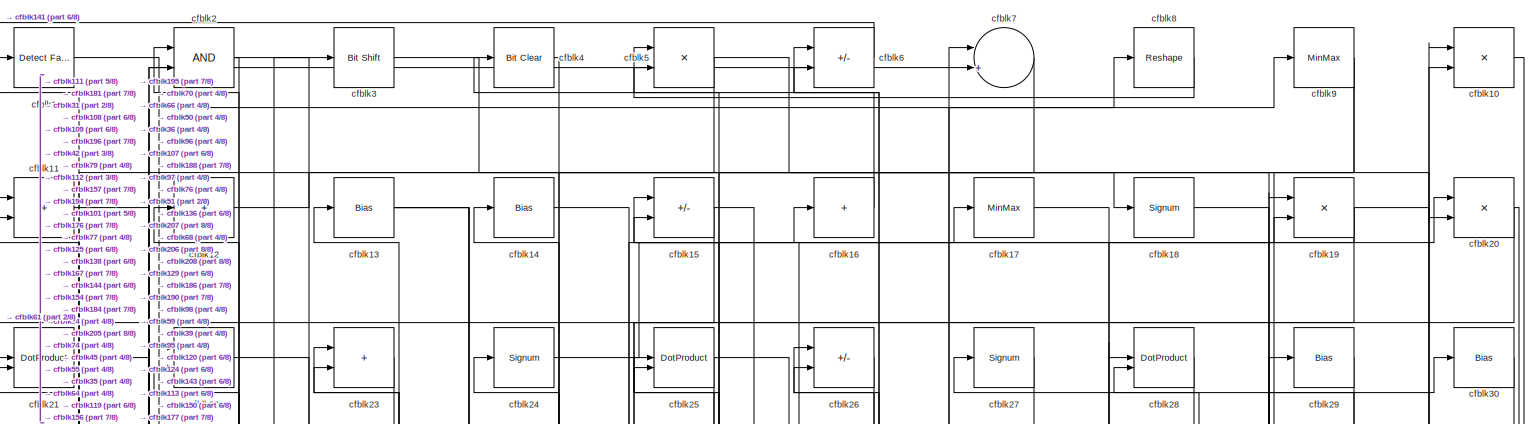
[diagram: root canvas - part 1/8, full width, top band]
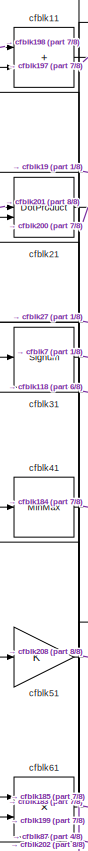
[diagram: root canvas - part 2/8, top left region]
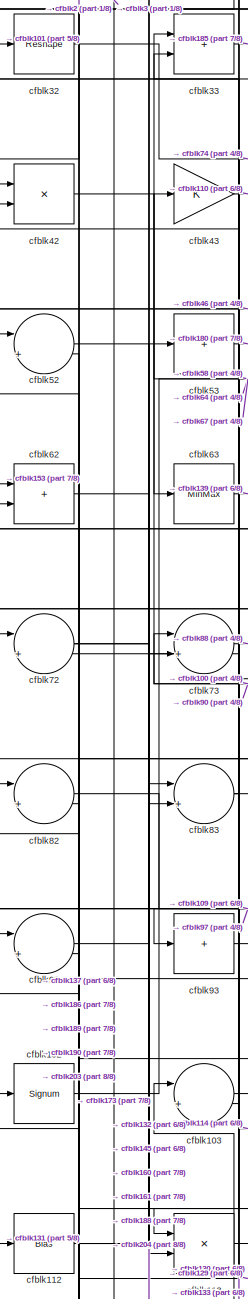
[diagram: root canvas - part 3/8, middle left region]
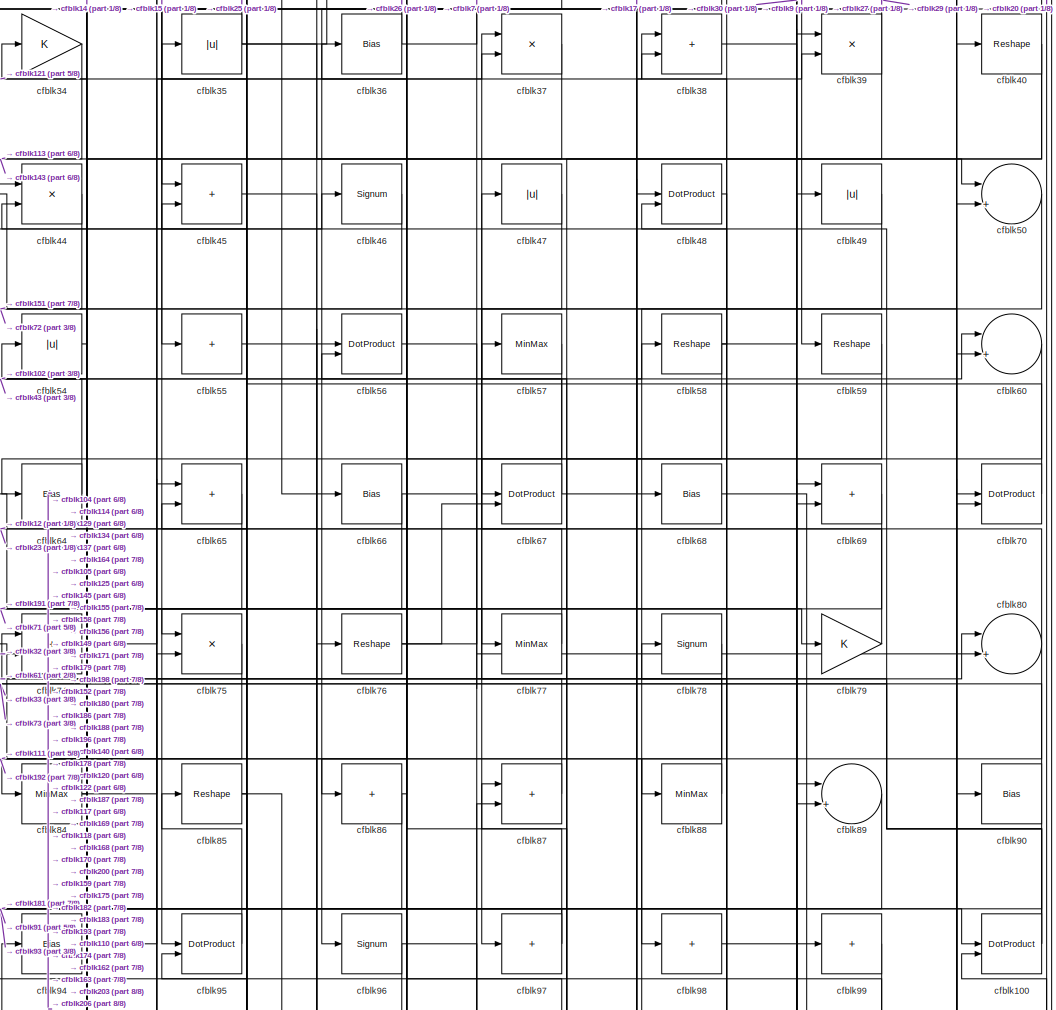
[diagram: root canvas - part 4/8, top center region]
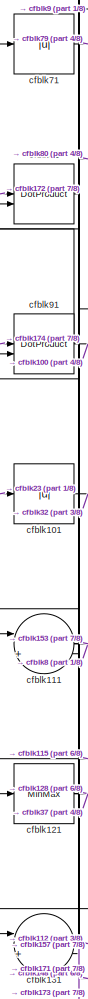
[diagram: root canvas - part 5/8, middle left region]
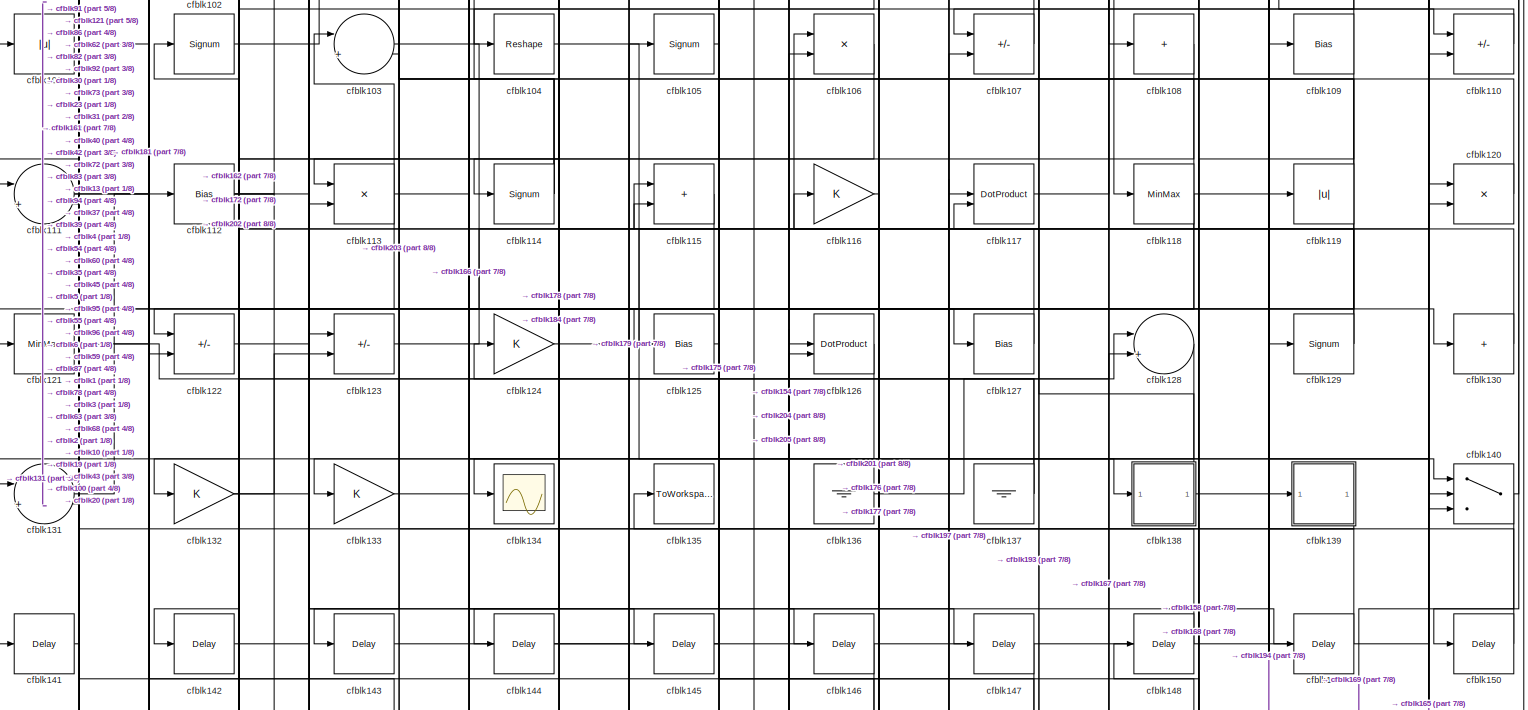
[diagram: root canvas - part 6/8, full width, middle band]
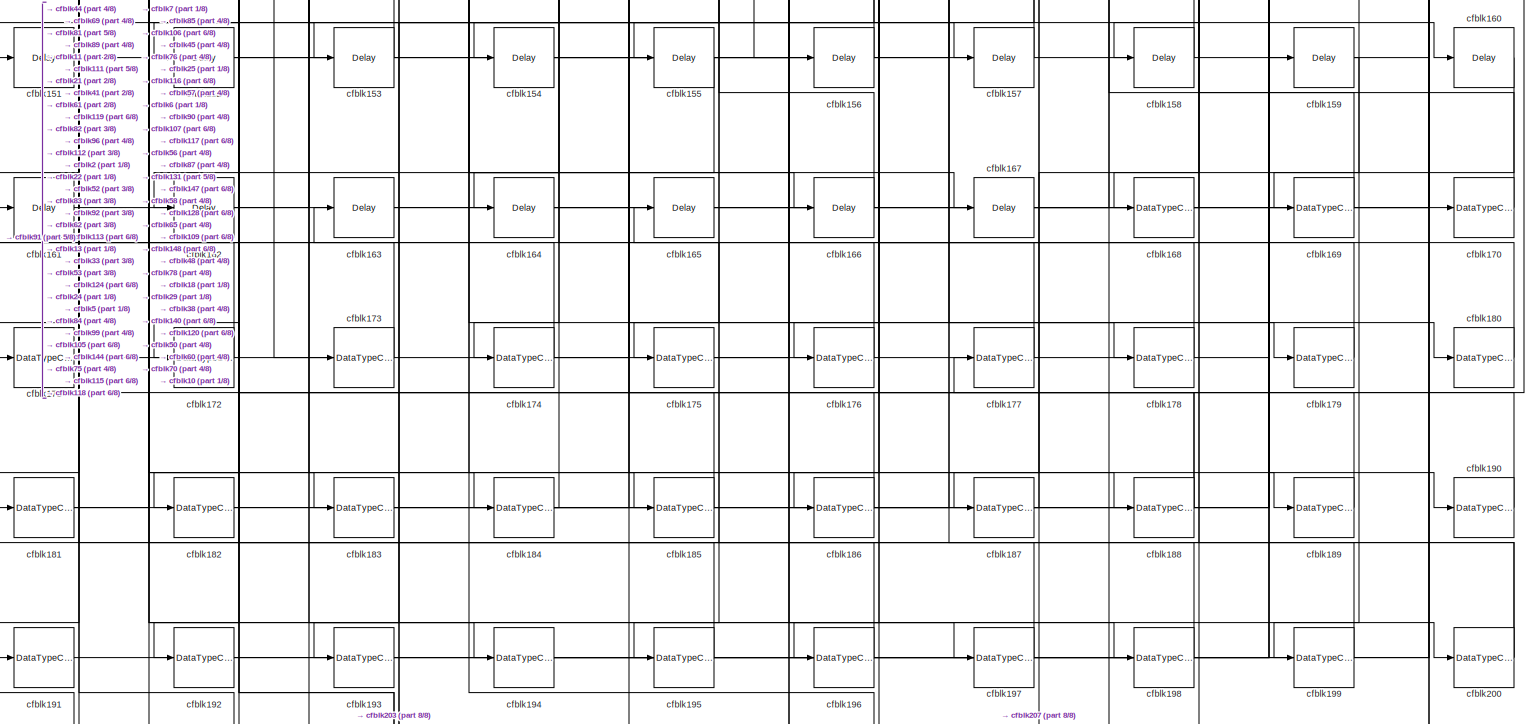
[diagram: root canvas - part 7/8, full width, bottom band]
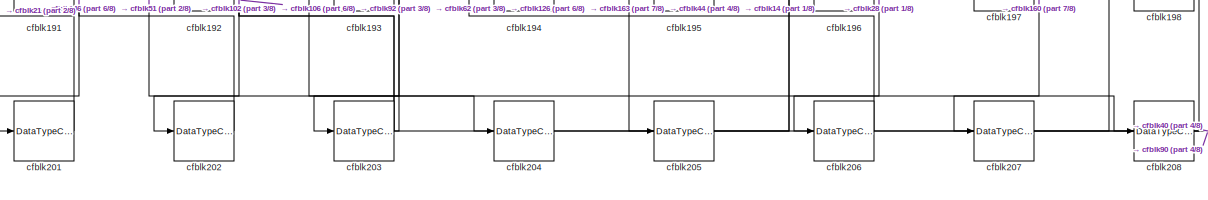
[diagram: root canvas - part 8/8, full width, bottom band]
MODEL slx_ae79311d455b
KIND model
CONFIG AbsTol = auto
CONFIG EnableMultiTasking = off
CONFIG FixedStep = auto
CONFIG MaxStep = auto
CONFIG MinStep = auto
CONFIG RelTol = 1e-3
CONFIG SampleTimeConstraint = Unconstrained
CONFIG SolverName = VariableStepAuto
CONFIG StartTime = 0.0
CONFIG StopTime = 10.0
BLOCK [Reference] cfblk1  REF=hdlsllib/Logic and Bit
Operations/Detect Fall
Negative
  SourceBlock = hdlsllib/Logic and Bit\nOperations/Detect Fall\nNegative
  SourceType = Detect Fall Negative
BLOCK [Product] cfblk10
  Inputs = */
  RndMeth = Zero
  SaturateOnIntegerOverflow = on
BLOCK [DotProduct] cfblk100
  OutDataTypeStr = Inherit: Inherit via internal rule
BLOCK [Abs] cfblk101
  SaturateOnIntegerOverflow = off
BLOCK [Signum] cfblk102
BLOCK [Sum] cfblk103
  Inputs = |++
BLOCK [Reshape] cfblk104
BLOCK [Signum] cfblk105
BLOCK [Product] cfblk106
  Inputs = */
  RndMeth = Zero
  SaturateOnIntegerOverflow = on
BLOCK [Sum] cfblk107
  IconShape = rectangular
  Inputs = +-
BLOCK [Sum] cfblk108
  IconShape = rectangular
  Inputs = +
BLOCK [Bias] cfblk109
  Bias = 0.0
  SaturateOnIntegerOverflow = off
BLOCK [Sum] cfblk11
  IconShape = rectangular
BLOCK [Sum] cfblk110
  IconShape = rectangular
  Inputs = +-
BLOCK [Sum] cfblk111
  Inputs = |++
BLOCK [Bias] cfblk112
  Bias = 0.0
  SaturateOnIntegerOverflow = off
BLOCK [Product] cfblk113
  Inputs = */
  RndMeth = Zero
  SaturateOnIntegerOverflow = on
BLOCK [Signum] cfblk114
BLOCK [Sum] cfblk115
  IconShape = rectangular
BLOCK [Gain] cfblk116
BLOCK [DotProduct] cfblk117
  OutDataTypeStr = Inherit: Inherit via internal rule
BLOCK [MinMax] cfblk118
BLOCK [Abs] cfblk119
  SaturateOnIntegerOverflow = off
BLOCK [Sum] cfblk12
  IconShape = rectangular
  Inputs = +
BLOCK [Product] cfblk120
  Inputs = */
  RndMeth = Zero
  SaturateOnIntegerOverflow = on
BLOCK [MinMax] cfblk121
BLOCK [Sum] cfblk122
  IconShape = rectangular
  Inputs = +-
BLOCK [Sum] cfblk123
  IconShape = rectangular
  Inputs = +-
BLOCK [Gain] cfblk124
BLOCK [Bias] cfblk125
  Bias = 0.0
  SaturateOnIntegerOverflow = off
BLOCK [DotProduct] cfblk126
  OutDataTypeStr = Inherit: Inherit via internal rule
BLOCK [Bias] cfblk127
  Bias = 0.0
  SaturateOnIntegerOverflow = off
BLOCK [Sum] cfblk128
  Inputs = |++
BLOCK [Signum] cfblk129
BLOCK [Bias] cfblk13
  Bias = 0.0
  SaturateOnIntegerOverflow = off
BLOCK [Sum] cfblk130
  IconShape = rectangular
  Inputs = +
BLOCK [Sum] cfblk131
  Inputs = |++
BLOCK [Gain] cfblk132
BLOCK [Gain] cfblk133
BLOCK [Scope] cfblk134
  Floating = off
  NumInputPorts = 1
  ScopeSpecificationString = Simulink.scopes.TimeScopeBlockCfg('CurrentConfiguration', extmgr.ConfigurationSet(extmgr.Configuration('Core','General UI',true),extmgr.Configuration('Core','Source UI',true),extmgr.Configuration('Sources','WiredSimulink',true,'DataLoggingVariableName','ScopeData2','DataLoggingSaveFormat','Array','DataLoggingLimitDataPoints',true,'DataLoggingDecimation','1'),extmgr.Configuration('Visuals','Time Do...<+868ch>
BLOCK [ToWorkspace] cfblk135
  MaxDataPoints = inf
  SampleTime = -1
  SaveFormat = Timeseries
  VariableName = simout
BLOCK [Ground] cfblk136
BLOCK [Ground] cfblk137
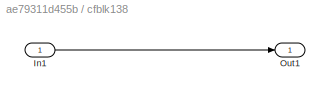
BLOCK [SubSystem] cfblk138
  LibrarySourceBlock = hdlsllib/Ports &\nSubsystems/Subsystem
BLOCK [Inport] cfblk138/In1
BLOCK [Outport] cfblk138/Out1
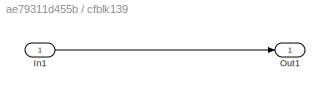
BLOCK [SubSystem] cfblk139
  LibrarySourceBlock = hdlsllib/Ports &\nSubsystems/Subsystem
BLOCK [Inport] cfblk139/In1
BLOCK [Outport] cfblk139/Out1
BLOCK [Bias] cfblk14
  Bias = 0.0
  SaturateOnIntegerOverflow = off
BLOCK [Switch] cfblk140
  InputSameDT = off
  SaturateOnIntegerOverflow = off
BLOCK [Delay] cfblk141
  InputPortMap = u0
  SampleTime = 1
BLOCK [Delay] cfblk142
  InputPortMap = u0
  SampleTime = 1
BLOCK [Delay] cfblk143
  InputPortMap = u0
  SampleTime = 1
BLOCK [Delay] cfblk144
  InputPortMap = u0
  SampleTime = 1
BLOCK [Delay] cfblk145
  InputPortMap = u0
  SampleTime = 1
BLOCK [Delay] cfblk146
  InputPortMap = u0
  SampleTime = 1
BLOCK [Delay] cfblk147
  InputPortMap = u0
  SampleTime = 1
BLOCK [Delay] cfblk148
  InputPortMap = u0
  SampleTime = 1
BLOCK [Delay] cfblk149
  InputPortMap = u0
  SampleTime = 1
BLOCK [Sum] cfblk15
  IconShape = rectangular
  Inputs = +-
BLOCK [Delay] cfblk150
  InputPortMap = u0
  SampleTime = 1
BLOCK [Delay] cfblk151
  InputPortMap = u0
  SampleTime = 1
BLOCK [Delay] cfblk152
  InputPortMap = u0
  SampleTime = 1
BLOCK [Delay] cfblk153
  InputPortMap = u0
  SampleTime = 1
BLOCK [Delay] cfblk154
  InputPortMap = u0
  SampleTime = 1
BLOCK [Delay] cfblk155
  InputPortMap = u0
  SampleTime = 1
BLOCK [Delay] cfblk156
  InputPortMap = u0
  SampleTime = 1
BLOCK [Delay] cfblk157
  InputPortMap = u0
  SampleTime = 1
BLOCK [Delay] cfblk158
  InputPortMap = u0
  SampleTime = 1
BLOCK [Delay] cfblk159
  InputPortMap = u0
  SampleTime = 1
BLOCK [Sum] cfblk16
  IconShape = rectangular
  Inputs = +
BLOCK [Delay] cfblk160
  InputPortMap = u0
  SampleTime = 1
BLOCK [Delay] cfblk161
  InputPortMap = u0
  SampleTime = 1
BLOCK [Delay] cfblk162
  InputPortMap = u0
  SampleTime = 1
BLOCK [Delay] cfblk163
  InputPortMap = u0
  SampleTime = 1
BLOCK [Delay] cfblk164
  InputPortMap = u0
  SampleTime = 1
BLOCK [Delay] cfblk165
  InputPortMap = u0
  SampleTime = 1
BLOCK [Delay] cfblk166
  InputPortMap = u0
  SampleTime = 1
BLOCK [Delay] cfblk167
  InputPortMap = u0
  SampleTime = 1
BLOCK [DataTypeConversion] cfblk168
  OutDataTypeStr = uint8
  RndMeth = Floor
  SaturateOnIntegerOverflow = off
BLOCK [DataTypeConversion] cfblk169
  OutDataTypeStr = uint8
  RndMeth = Floor
  SaturateOnIntegerOverflow = off
BLOCK [MinMax] cfblk17
BLOCK [DataTypeConversion] cfblk170
  OutDataTypeStr = uint8
  RndMeth = Floor
  SaturateOnIntegerOverflow = off
BLOCK [DataTypeConversion] cfblk171
  OutDataTypeStr = uint8
  RndMeth = Floor
  SaturateOnIntegerOverflow = off
BLOCK [DataTypeConversion] cfblk172
  OutDataTypeStr = uint8
  RndMeth = Floor
  SaturateOnIntegerOverflow = off
BLOCK [DataTypeConversion] cfblk173
  OutDataTypeStr = uint8
  RndMeth = Floor
  SaturateOnIntegerOverflow = off
BLOCK [DataTypeConversion] cfblk174
  RndMeth = Floor
  SaturateOnIntegerOverflow = off
BLOCK [DataTypeConversion] cfblk175
  OutDataTypeStr = uint8
  RndMeth = Floor
  SaturateOnIntegerOverflow = off
BLOCK [DataTypeConversion] cfblk176
  OutDataTypeStr = uint8
  RndMeth = Floor
  SaturateOnIntegerOverflow = off
BLOCK [DataTypeConversion] cfblk177
  OutDataTypeStr = uint8
  RndMeth = Floor
  SaturateOnIntegerOverflow = off
BLOCK [DataTypeConversion] cfblk178
  OutDataTypeStr = uint8
  RndMeth = Floor
  SaturateOnIntegerOverflow = off
BLOCK [DataTypeConversion] cfblk179
  OutDataTypeStr = uint8
  RndMeth = Floor
  SaturateOnIntegerOverflow = off
BLOCK [Signum] cfblk18
BLOCK [DataTypeConversion] cfblk180
  OutDataTypeStr = uint8
  RndMeth = Floor
  SaturateOnIntegerOverflow = off
BLOCK [DataTypeConversion] cfblk181
  RndMeth = Floor
  SaturateOnIntegerOverflow = off
BLOCK [DataTypeConversion] cfblk182
  OutDataTypeStr = uint8
  RndMeth = Floor
  SaturateOnIntegerOverflow = off
BLOCK [DataTypeConversion] cfblk183
  OutDataTypeStr = uint8
  RndMeth = Floor
  SaturateOnIntegerOverflow = off
BLOCK [DataTypeConversion] cfblk184
  RndMeth = Floor
  SaturateOnIntegerOverflow = off
BLOCK [DataTypeConversion] cfblk185
  OutDataTypeStr = uint8
  RndMeth = Floor
  SaturateOnIntegerOverflow = off
BLOCK [DataTypeConversion] cfblk186
  RndMeth = Floor
  SaturateOnIntegerOverflow = off
BLOCK [DataTypeConversion] cfblk187
  OutDataTypeStr = uint8
  RndMeth = Floor
  SaturateOnIntegerOverflow = off
BLOCK [DataTypeConversion] cfblk188
  RndMeth = Floor
  SaturateOnIntegerOverflow = off
BLOCK [DataTypeConversion] cfblk189
  OutDataTypeStr = uint8
  RndMeth = Floor
  SaturateOnIntegerOverflow = off
BLOCK [Product] cfblk19
  Inputs = */
  RndMeth = Zero
  SaturateOnIntegerOverflow = on
BLOCK [DataTypeConversion] cfblk190
  OutDataTypeStr = uint8
  RndMeth = Floor
  SaturateOnIntegerOverflow = off
BLOCK [DataTypeConversion] cfblk191
  OutDataTypeStr = uint8
  RndMeth = Floor
  SaturateOnIntegerOverflow = off
BLOCK [DataTypeConversion] cfblk192
  OutDataTypeStr = uint8
  RndMeth = Floor
  SaturateOnIntegerOverflow = off
BLOCK [DataTypeConversion] cfblk193
  OutDataTypeStr = uint8
  RndMeth = Floor
  SaturateOnIntegerOverflow = off
BLOCK [DataTypeConversion] cfblk194
  RndMeth = Floor
  SaturateOnIntegerOverflow = off
BLOCK [DataTypeConversion] cfblk195
  OutDataTypeStr = uint8
  RndMeth = Floor
  SaturateOnIntegerOverflow = off
BLOCK [DataTypeConversion] cfblk196
  OutDataTypeStr = uint8
  RndMeth = Floor
  SaturateOnIntegerOverflow = off
BLOCK [DataTypeConversion] cfblk197
  OutDataTypeStr = uint8
  RndMeth = Floor
  SaturateOnIntegerOverflow = off
BLOCK [DataTypeConversion] cfblk198
  OutDataTypeStr = uint8
  RndMeth = Floor
  SaturateOnIntegerOverflow = off
BLOCK [DataTypeConversion] cfblk199
  OutDataTypeStr = uint8
  RndMeth = Floor
  SaturateOnIntegerOverflow = off
BLOCK [Logic] cfblk2
  AllPortsSameDT = off
  OutDataTypeStr = boolean
BLOCK [Product] cfblk20
  Inputs = */
  RndMeth = Zero
  SaturateOnIntegerOverflow = on
BLOCK [DataTypeConversion] cfblk200
  RndMeth = Floor
  SaturateOnIntegerOverflow = off
BLOCK [DataTypeConversion] cfblk201
  OutDataTypeStr = uint8
  RndMeth = Floor
  SaturateOnIntegerOverflow = off
BLOCK [DataTypeConversion] cfblk202
  OutDataTypeStr = uint8
  RndMeth = Floor
  SaturateOnIntegerOverflow = off
BLOCK [DataTypeConversion] cfblk203
  RndMeth = Floor
  SaturateOnIntegerOverflow = off
BLOCK [DataTypeConversion] cfblk204
  OutDataTypeStr = uint8
  RndMeth = Floor
  SaturateOnIntegerOverflow = off
BLOCK [DataTypeConversion] cfblk205
  OutDataTypeStr = uint8
  RndMeth = Floor
  SaturateOnIntegerOverflow = off
BLOCK [DataTypeConversion] cfblk206
  RndMeth = Floor
  SaturateOnIntegerOverflow = off
BLOCK [DataTypeConversion] cfblk207
  OutDataTypeStr = uint8
  RndMeth = Floor
  SaturateOnIntegerOverflow = off
BLOCK [DataTypeConversion] cfblk208
  OutDataTypeStr = uint8
  RndMeth = Floor
  SaturateOnIntegerOverflow = off
BLOCK [DotProduct] cfblk21
  OutDataTypeStr = Inherit: Inherit via internal rule
BLOCK [Product] cfblk22
  Inputs = */
  RndMeth = Zero
  SaturateOnIntegerOverflow = on
BLOCK [Sum] cfblk23
  IconShape = rectangular
BLOCK [Signum] cfblk24
BLOCK [DotProduct] cfblk25
  OutDataTypeStr = Inherit: Inherit via internal rule
BLOCK [Sum] cfblk26
  IconShape = rectangular
  Inputs = +-
BLOCK [Signum] cfblk27
BLOCK [DotProduct] cfblk28
  OutDataTypeStr = Inherit: Inherit via internal rule
BLOCK [Bias] cfblk29
  Bias = 0.0
  SaturateOnIntegerOverflow = off
BLOCK [Reference] cfblk3  REF=hdlsllib/Logic and Bit
Operations/Bit Shift
  SourceBlock = hdlsllib/Logic and Bit\nOperations/Bit Shift
  SourceType = Bit Shift
BLOCK [Bias] cfblk30
  Bias = 0.0
  SaturateOnIntegerOverflow = off
BLOCK [Signum] cfblk31
BLOCK [Reshape] cfblk32
BLOCK [Sum] cfblk33
  IconShape = rectangular
BLOCK [Gain] cfblk34
BLOCK [Abs] cfblk35
  SaturateOnIntegerOverflow = off
BLOCK [Bias] cfblk36
  Bias = 0.0
  SaturateOnIntegerOverflow = off
BLOCK [Product] cfblk37
  Inputs = */
  RndMeth = Zero
  SaturateOnIntegerOverflow = on
BLOCK [Sum] cfblk38
  IconShape = rectangular
BLOCK [Product] cfblk39
  Inputs = */
  RndMeth = Zero
  SaturateOnIntegerOverflow = on
BLOCK [Reference] cfblk4  REF=simulink/Logic and Bit
Operations/Bit Clear
  LibrarySourceBlock = hdlsllib/Logic and Bit\nOperations/Bit Clear
  SourceBlock = simulink/Logic and Bit\nOperations/Bit Clear
  SourceType = Bit Clear
BLOCK [Reshape] cfblk40
BLOCK [MinMax] cfblk41
BLOCK [Product] cfblk42
  Inputs = */
  RndMeth = Zero
  SaturateOnIntegerOverflow = on
BLOCK [Gain] cfblk43
BLOCK [Product] cfblk44
  Inputs = */
  RndMeth = Zero
  SaturateOnIntegerOverflow = on
BLOCK [Sum] cfblk45
  IconShape = rectangular
BLOCK [Signum] cfblk46
BLOCK [Abs] cfblk47
  SaturateOnIntegerOverflow = off
BLOCK [DotProduct] cfblk48
  OutDataTypeStr = Inherit: Inherit via internal rule
BLOCK [Abs] cfblk49
  SaturateOnIntegerOverflow = off
BLOCK [Product] cfblk5
  Inputs = */
  RndMeth = Zero
  SaturateOnIntegerOverflow = on
BLOCK [Sum] cfblk50
  Inputs = |++
BLOCK [Gain] cfblk51
BLOCK [Sum] cfblk52
  Inputs = |++
BLOCK [Sum] cfblk53
  IconShape = rectangular
  Inputs = +
BLOCK [Abs] cfblk54
  SaturateOnIntegerOverflow = off
BLOCK [Sum] cfblk55
  IconShape = rectangular
  Inputs = +
BLOCK [DotProduct] cfblk56
  OutDataTypeStr = Inherit: Inherit via internal rule
BLOCK [MinMax] cfblk57
BLOCK [Reshape] cfblk58
BLOCK [Reshape] cfblk59
BLOCK [Sum] cfblk6
  IconShape = rectangular
  Inputs = +-
BLOCK [Sum] cfblk60
  Inputs = |++
BLOCK [Product] cfblk61
  Inputs = */
  RndMeth = Zero
  SaturateOnIntegerOverflow = on
BLOCK [Sum] cfblk62
  IconShape = rectangular
BLOCK [MinMax] cfblk63
BLOCK [Bias] cfblk64
  Bias = 0.0
  SaturateOnIntegerOverflow = off
BLOCK [Sum] cfblk65
  IconShape = rectangular
BLOCK [Bias] cfblk66
  Bias = 0.0
  SaturateOnIntegerOverflow = off
BLOCK [DotProduct] cfblk67
  OutDataTypeStr = Inherit: Inherit via internal rule
BLOCK [Bias] cfblk68
  Bias = 0.0
  SaturateOnIntegerOverflow = off
BLOCK [Sum] cfblk69
  IconShape = rectangular
BLOCK [Sum] cfblk7
  Inputs = |++
BLOCK [DotProduct] cfblk70
  OutDataTypeStr = Inherit: Inherit via internal rule
BLOCK [Abs] cfblk71
  SaturateOnIntegerOverflow = off
BLOCK [Sum] cfblk72
  Inputs = |++
BLOCK [Sum] cfblk73
  Inputs = |++
BLOCK [Sum] cfblk74
  IconShape = rectangular
BLOCK [Product] cfblk75
  Inputs = */
  RndMeth = Zero
  SaturateOnIntegerOverflow = on
BLOCK [Reshape] cfblk76
BLOCK [MinMax] cfblk77
BLOCK [Signum] cfblk78
BLOCK [Gain] cfblk79
BLOCK [Reshape] cfblk8
BLOCK [Sum] cfblk80
  Inputs = |++
BLOCK [DotProduct] cfblk81
  OutDataTypeStr = Inherit: Inherit via internal rule
BLOCK [Sum] cfblk82
  Inputs = |++
BLOCK [Sum] cfblk83
  Inputs = |++
BLOCK [MinMax] cfblk84
BLOCK [Reshape] cfblk85
BLOCK [Sum] cfblk86
  IconShape = rectangular
  Inputs = +
BLOCK [Sum] cfblk87
  IconShape = rectangular
BLOCK [MinMax] cfblk88
BLOCK [Sum] cfblk89
  Inputs = |++
BLOCK [MinMax] cfblk9
BLOCK [Bias] cfblk90
  Bias = 0.0
  SaturateOnIntegerOverflow = off
BLOCK [DotProduct] cfblk91
  OutDataTypeStr = Inherit: Inherit via internal rule
BLOCK [Sum] cfblk92
  Inputs = |++
BLOCK [Sum] cfblk93
  IconShape = rectangular
  Inputs = +
BLOCK [Bias] cfblk94
  Bias = 0.0
  SaturateOnIntegerOverflow = off
BLOCK [DotProduct] cfblk95
  OutDataTypeStr = Inherit: Inherit via internal rule
BLOCK [Signum] cfblk96
BLOCK [Sum] cfblk97
  IconShape = rectangular
  Inputs = +
BLOCK [Sum] cfblk98
  IconShape = rectangular
  Inputs = +
BLOCK [Sum] cfblk99
  IconShape = rectangular
  Inputs = +
NET cfblk100:1 -> cfblk44:2, cfblk73:1, cfblk74:1
LINE cfblk101:1 -> cfblk32:1
LINE cfblk102:1 -> cfblk58:1
LINE cfblk103:1 -> cfblk127:1
LINE cfblk104:1 -> cfblk140:2
LINE cfblk105:1 -> cfblk35:1
LINE cfblk106:1 -> cfblk202:1
LINE cfblk107:1 -> cfblk6:1
LINE cfblk108:1 -> cfblk132:1
NET cfblk109:1 -> cfblk158:1, cfblk2:1
LINE cfblk10:1 -> cfblk177:1
LINE cfblk110:1 -> cfblk107:1
NET cfblk111:1 -> cfblk153:1, cfblk8:1
NET cfblk112:1 -> cfblk173:1, cfblk3:1, cfblk53:1
NET cfblk113:1 -> cfblk103:1, cfblk142:1, cfblk166:1
NET cfblk114:1 -> cfblk42:2, cfblk72:2, cfblk94:1
LINE cfblk115:1 -> cfblk121:1
LINE cfblk116:1 -> cfblk176:1
LINE cfblk117:1 -> cfblk39:2
NET cfblk118:1 -> cfblk140:3, cfblk172:1, cfblk175:1, cfblk31:1
NET cfblk119:1 -> cfblk161:1, cfblk162:1, cfblk23:2, cfblk5:2
LINE cfblk11:1 -> cfblk197:1
LINE cfblk120:1 -> cfblk87:1
NET cfblk121:1 -> cfblk128:1, cfblk37:2
LINE cfblk122:1 -> cfblk147:1
LINE cfblk123:1 -> cfblk115:1
LINE cfblk124:1 -> cfblk10:1
LINE cfblk125:1 -> cfblk95:2
LINE cfblk126:1 -> cfblk203:1
LINE cfblk127:1 -> cfblk106:1
LINE cfblk128:1 -> cfblk131:1
NET cfblk129:1 -> cfblk54:1, cfblk82:1
LINE cfblk12:1 -> cfblk18:1
LINE cfblk130:1 -> cfblk62:2
LINE cfblk131:1 -> cfblk112:1
NET cfblk132:1 -> cfblk123:2, cfblk73:2
LINE cfblk133:1 -> cfblk146:1
LINE cfblk136:1 -> cfblk19:2
NET cfblk137:1 -> cfblk34:1, cfblk92:2
LINE cfblk138/In1:1 -> cfblk138/Out1:1
NET cfblk138:1 -> cfblk117:2, cfblk19:1
LINE cfblk139/In1:1 -> cfblk139/Out1:1
LINE cfblk139:1 -> cfblk135:1
NET cfblk13:1 -> cfblk125:1, cfblk138:1, cfblk167:1
NET cfblk140:1 -> cfblk100:2, cfblk169:1
LINE cfblk141:1 -> cfblk1:1
LINE cfblk142:1 -> cfblk123:1
LINE cfblk143:1 -> cfblk10:2
LINE cfblk144:1 -> cfblk179:1
LINE cfblk145:1 -> cfblk45:2
LINE cfblk146:1 -> cfblk201:1
LINE cfblk147:1 -> cfblk193:1
LINE cfblk148:1 -> cfblk91:2
LINE cfblk149:1 -> cfblk39:1
LINE cfblk14:1 -> cfblk205:1
LINE cfblk150:1 -> cfblk103:2
LINE cfblk151:1 -> cfblk87:2
LINE cfblk152:1 -> cfblk60:2
LINE cfblk153:1 -> cfblk62:1
LINE cfblk154:1 -> cfblk106:2
LINE cfblk155:1 -> cfblk182:1
LINE cfblk156:1 -> cfblk25:2
LINE cfblk157:1 -> cfblk131:2
LINE cfblk158:1 -> cfblk65:2
LINE cfblk159:1 -> cfblk199:1
NET cfblk15:1 -> cfblk45:1, cfblk66:1
LINE cfblk160:1 -> cfblk207:1
LINE cfblk161:1 -> cfblk83:1
LINE cfblk162:1 -> cfblk70:2
LINE cfblk163:1 -> cfblk50:2
LINE cfblk164:1 -> cfblk189:1
LINE cfblk165:1 -> cfblk120:2
LINE cfblk166:1 -> cfblk115:2
LINE cfblk167:1 -> cfblk128:2
LINE cfblk168:1 -> cfblk148:1
LINE cfblk169:1 -> cfblk48:1
LINE cfblk16:1 -> cfblk4:1
LINE cfblk170:1 -> cfblk48:2
LINE cfblk171:1 -> cfblk76:1
LINE cfblk172:1 -> cfblk81:1
LINE cfblk173:1 -> cfblk81:2
NET cfblk174:1 -> cfblk75:2, cfblk91:1
LINE cfblk175:1 -> cfblk99:1
LINE cfblk176:1 -> cfblk13:1
LINE cfblk177:1 -> cfblk116:1
LINE cfblk178:1 -> cfblk124:1
LINE cfblk179:1 -> cfblk56:1
LINE cfblk17:1 -> cfblk68:1
LINE cfblk180:1 -> cfblk56:2
NET cfblk181:1 -> cfblk105:1, cfblk2:2
LINE cfblk182:1 -> cfblk89:1
LINE cfblk183:1 -> cfblk89:2
NET cfblk184:1 -> cfblk107:2, cfblk24:1
LINE cfblk185:1 -> cfblk41:1
NET cfblk186:1 -> cfblk29:1, cfblk82:2
LINE cfblk187:1 -> cfblk57:1
NET cfblk188:1 -> cfblk65:1, cfblk6:2
LINE cfblk189:1 -> cfblk52:1
LINE cfblk18:1 -> cfblk190:1
LINE cfblk190:1 -> cfblk52:2
LINE cfblk191:1 -> cfblk70:1
LINE cfblk192:1 -> cfblk69:1
LINE cfblk193:1 -> cfblk69:2
NET cfblk194:1 -> cfblk119:1, cfblk170:1
LINE cfblk195:1 -> cfblk22:1
LINE cfblk196:1 -> cfblk22:2
LINE cfblk197:1 -> cfblk117:1
LINE cfblk198:1 -> cfblk11:1
LINE cfblk199:1 -> cfblk11:2
NET cfblk19:1 -> cfblk120:1, cfblk15:2, cfblk61:2
LINE cfblk1:1 -> cfblk108:1
NET cfblk200:1 -> cfblk165:1, cfblk78:1
LINE cfblk201:1 -> cfblk21:1
LINE cfblk202:1 -> cfblk21:2
NET cfblk203:1 -> cfblk102:1, cfblk163:1, cfblk90:1, cfblk92:1
LINE cfblk204:1 -> cfblk126:1
LINE cfblk205:1 -> cfblk126:2
NET cfblk206:1 -> cfblk40:1, cfblk44:1
LINE cfblk207:1 -> cfblk28:1
LINE cfblk208:1 -> cfblk28:2
NET cfblk20:1 -> cfblk150:1, cfblk55:1
LINE cfblk21:1 -> cfblk200:1
LINE cfblk22:1 -> cfblk194:1
LINE cfblk23:1 -> cfblk101:1
LINE cfblk24:1 -> cfblk16:1
NET cfblk25:1 -> cfblk50:1, cfblk64:1
LINE cfblk26:1 -> cfblk96:1
LINE cfblk27:1 -> cfblk51:1
LINE cfblk28:1 -> cfblk206:1
LINE cfblk29:1 -> cfblk95:1
NET cfblk2:1 -> cfblk157:1, cfblk42:1
LINE cfblk30:1 -> cfblk113:2
LINE cfblk31:1 -> cfblk7:2
LINE cfblk32:1 -> cfblk74:2
LINE cfblk33:1 -> cfblk185:1
LINE cfblk34:1 -> cfblk113:1
NET cfblk35:1 -> cfblk17:1, cfblk25:1, cfblk77:1
NET cfblk36:1 -> cfblk26:1, cfblk9:1
LINE cfblk37:1 -> cfblk134:1
LINE cfblk38:1 -> cfblk159:1
NET cfblk39:1 -> cfblk104:1, cfblk27:1
LINE cfblk3:1 -> cfblk129:1
NET cfblk40:1 -> cfblk143:1, cfblk67:1
LINE cfblk41:1 -> cfblk184:1
LINE cfblk42:1 -> cfblk63:1
LINE cfblk43:1 -> cfblk110:2
LINE cfblk44:1 -> cfblk151:1
LINE cfblk45:1 -> cfblk198:1
LINE cfblk46:1 -> cfblk72:1
LINE cfblk47:1 -> cfblk97:1
LINE cfblk48:1 -> cfblk168:1
LINE cfblk49:1 -> cfblk86:1
LINE cfblk4:1 -> cfblk144:1
LINE cfblk50:1 -> cfblk98:1
LINE cfblk51:1 -> cfblk208:1
LINE cfblk52:1 -> cfblk188:1
LINE cfblk53:1 -> cfblk180:1
LINE cfblk54:1 -> cfblk14:1
LINE cfblk55:1 -> cfblk149:1
LINE cfblk56:1 -> cfblk178:1
LINE cfblk57:1 -> cfblk186:1
NET cfblk58:1 -> cfblk187:1, cfblk38:1, cfblk49:1
LINE cfblk59:1 -> cfblk122:1
NET cfblk5:1 -> cfblk154:1, cfblk20:2
LINE cfblk60:1 -> cfblk114:1
LINE cfblk61:1 -> cfblk183:1
LINE cfblk62:1 -> cfblk204:1
LINE cfblk63:1 -> cfblk139:1
LINE cfblk64:1 -> cfblk43:1
LINE cfblk65:1 -> cfblk75:1
NET cfblk66:1 -> cfblk80:2, cfblk84:1
NET cfblk67:1 -> cfblk33:2, cfblk60:1
LINE cfblk68:1 -> cfblk110:1
LINE cfblk69:1 -> cfblk191:1
LINE cfblk6:1 -> cfblk141:1
LINE cfblk70:1 -> cfblk15:1
LINE cfblk71:1 -> cfblk79:1
NET cfblk72:1 -> cfblk145:1, cfblk83:2
LINE cfblk73:1 -> cfblk88:1
LINE cfblk74:1 -> cfblk20:1
LINE cfblk75:1 -> cfblk192:1
NET cfblk76:1 -> cfblk67:2, cfblk7:1
LINE cfblk77:1 -> cfblk23:1
LINE cfblk78:1 -> cfblk118:1
LINE cfblk79:1 -> cfblk12:1
LINE cfblk7:1 -> cfblk195:1
NET cfblk80:1 -> cfblk111:1, cfblk47:1
LINE cfblk81:1 -> cfblk171:1
LINE cfblk82:1 -> cfblk109:1
NET cfblk83:1 -> cfblk130:1, cfblk133:1
NET cfblk84:1 -> cfblk164:1, cfblk38:2
NET cfblk85:1 -> cfblk155:1, cfblk156:1
NET cfblk86:1 -> cfblk122:2, cfblk36:1
LINE cfblk87:1 -> cfblk61:1
LINE cfblk88:1 -> cfblk37:1
LINE cfblk89:1 -> cfblk181:1
LINE cfblk8:1 -> cfblk5:1
NET cfblk90:1 -> cfblk196:1, cfblk33:1
NET cfblk91:1 -> cfblk100:1, cfblk71:1
LINE cfblk92:1 -> cfblk160:1
LINE cfblk93:1 -> cfblk46:1
LINE cfblk94:1 -> cfblk80:1
LINE cfblk95:1 -> cfblk85:1
NET cfblk96:1 -> cfblk140:1, cfblk152:1
NET cfblk97:1 -> cfblk26:2, cfblk93:1
LINE cfblk98:1 -> cfblk30:1
LINE cfblk99:1 -> cfblk174:1
NET cfblk9:1 -> cfblk111:2, cfblk59:1
note: NET lines group one-source signal fan-out (src -> all destinations, sorted); 1:1 wires keep LINE
